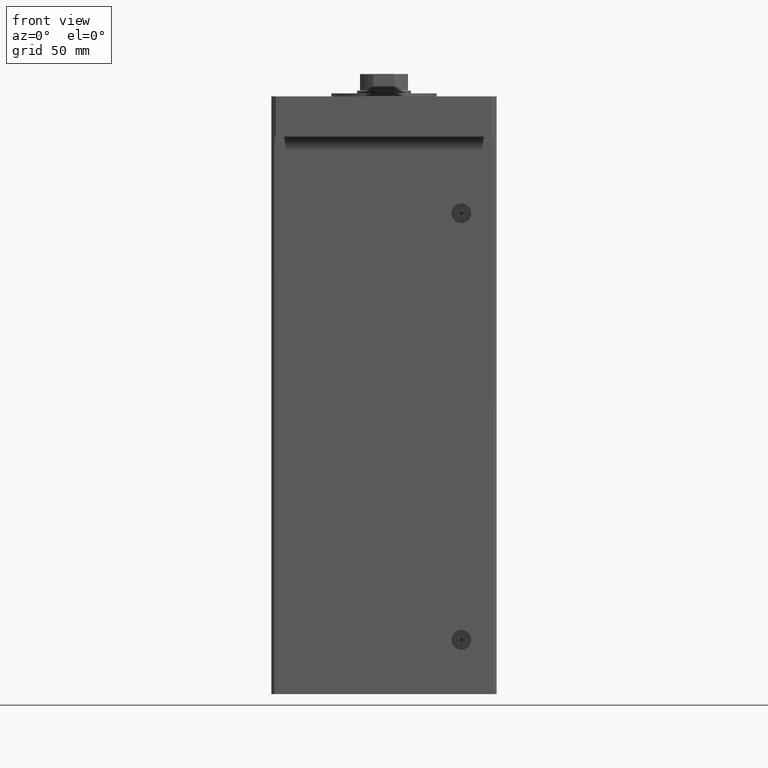
[diagram: clean part render]
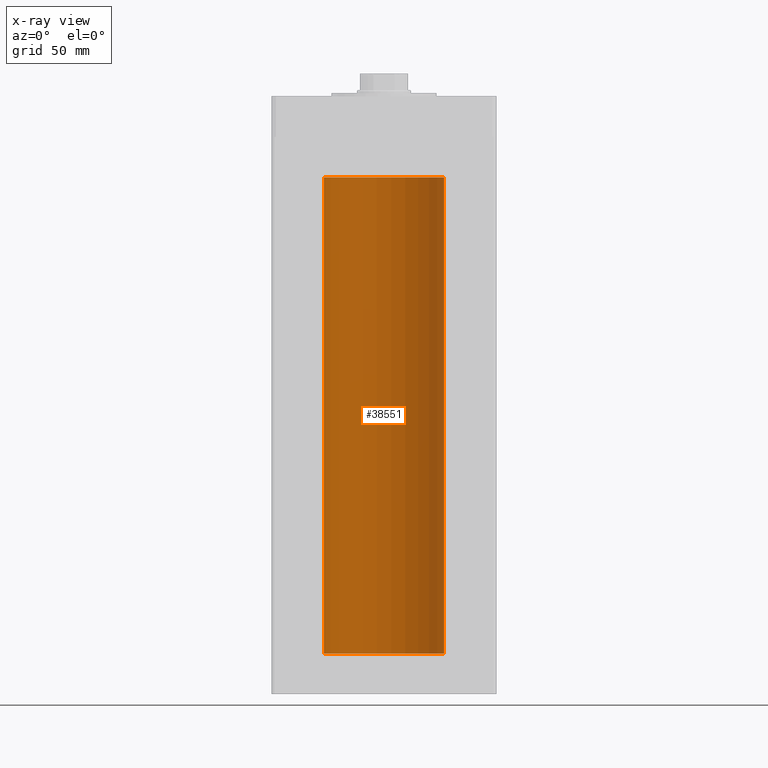
[diagram: x-ray — body ghosted, one internal face saturated and labeled with its STEP entity id]
A machine part, front view, then the same camera in x-ray: the body is ghosted and one INTERNAL B-rep face — a face not visible from any outside direction — is saturated and labeled: STEP entity #38551.
In plain terms, the highlighted cylindrical surface (partial cylindrical patch) has radius 40 mm, axis along (-0, -0, -1).
Its self-contained STEP definition (entity closure, byte-faithful):
#911 = CARTESIAN_POINT ( 'NONE',  ( 0.000000000000000000, 0.000000000000000000, 0.000000000000000000 ) ) ;
#1404 = VERTEX_POINT ( 'NONE', #30813 ) ;
#5284 = VERTEX_POINT ( 'NONE', #21671 ) ;
#6465 = DIRECTION ( 'NONE',  ( -1.000000000000000000, 0.000000000000000000, 0.000000000000000000 ) ) ;
#7747 = AXIS2_PLACEMENT_3D ( 'NONE', #43706, #14718, #10665 ) ;
#10665 = DIRECTION ( 'NONE',  ( 1.000000000000000000, 0.000000000000000000, 0.000000000000000000 ) ) ;
#11863 = FACE_OUTER_BOUND ( 'NONE', #52416, .T. ) ;
#12620 = EDGE_CURVE ( 'NONE', #1404, #24853, #48435, .T. ) ;
#14718 = DIRECTION ( 'NONE',  ( -0.000000000000000000, 0.000000000000000000, 1.000000000000000000 ) ) ;
#15716 = LINE ( 'NONE', #23560, #45620 ) ;
#16333 = ORIENTED_EDGE ( 'NONE', *, *, #38318, .F. ) ;
#16411 = EDGE_CURVE ( 'NONE', #5284, #34807, #41504, .T. ) ;
#17557 = CARTESIAN_POINT ( 'NONE',  ( -40.00000000000000000, 0.000000000000000000, 317.0000000000000000 ) ) ;
#19344 = CARTESIAN_POINT ( 'NONE',  ( -40.00000000000000000, 0.000000000000000000, 317.0000000000000000 ) ) ;
#21671 = CARTESIAN_POINT ( 'NONE',  ( 40.00000000000000000, 4.898587196589413026E-15, 317.0000000000000000 ) ) ;
#23400 = DIRECTION ( 'NONE',  ( -0.000000000000000000, -0.000000000000000000, -1.000000000000000000 ) ) ;
#23560 = CARTESIAN_POINT ( 'NONE',  ( 40.00000000000000000, 4.898587196589413026E-15, 317.0000000000000000 ) ) ;
#23666 = LINE ( 'NONE', #19344, #32379 ) ;
#24853 = VERTEX_POINT ( 'NONE', #39902 ) ;
#27303 = CARTESIAN_POINT ( 'NONE',  ( 0.000000000000000000, 0.000000000000000000, 317.0000000000000000 ) ) ;
#27592 = EDGE_CURVE ( 'NONE', #34807, #24853, #23666, .T. ) ;
#28366 = DIRECTION ( 'NONE',  ( -0.000000000000000000, -0.000000000000000000, -1.000000000000000000 ) ) ;
#30813 = CARTESIAN_POINT ( 'NONE',  ( 40.00000000000000000, 4.898587196589413026E-15, 0.000000000000000000 ) ) ;
#31427 = DIRECTION ( 'NONE',  ( -0.000000000000000000, -0.000000000000000000, -1.000000000000000000 ) ) ;
#32379 = VECTOR ( 'NONE', #23400, 1000.000000000000000 ) ;
#33490 = AXIS2_PLACEMENT_3D ( 'NONE', #27303, #28366, #6465 ) ;
#34807 = VERTEX_POINT ( 'NONE', #17557 ) ;
#38318 = EDGE_CURVE ( 'NONE', #5284, #1404, #15716, .T. ) ;
#38551 = ADVANCED_FACE ( 'NONE', ( #11863 ), #43841, .F. ) ;
#39655 = ORIENTED_EDGE ( 'NONE', *, *, #16411, .T. ) ;
#39902 = CARTESIAN_POINT ( 'NONE',  ( -40.00000000000000000, 0.000000000000000000, 0.000000000000000000 ) ) ;
#41504 = CIRCLE ( 'NONE', #7747, 40.00000000000000000 ) ;
#41539 = DIRECTION ( 'NONE',  ( -0.000000000000000000, 0.000000000000000000, 1.000000000000000000 ) ) ;
#43706 = CARTESIAN_POINT ( 'NONE',  ( 0.000000000000000000, 0.000000000000000000, 317.0000000000000000 ) ) ;
#43841 = CYLINDRICAL_SURFACE ( 'NONE', #33490, 40.00000000000000000 ) ;
#44106 = AXIS2_PLACEMENT_3D ( 'NONE', #911, #41539, #46684 ) ;
#45620 = VECTOR ( 'NONE', #31427, 1000.000000000000000 ) ;
#46684 = DIRECTION ( 'NONE',  ( 1.000000000000000000, 0.000000000000000000, 0.000000000000000000 ) ) ;
#48435 = CIRCLE ( 'NONE', #44106, 40.00000000000000000 ) ;
#48578 = ORIENTED_EDGE ( 'NONE', *, *, #12620, .F. ) ;
#51925 = ORIENTED_EDGE ( 'NONE', *, *, #27592, .T. ) ;
#52416 = EDGE_LOOP ( 'NONE', ( #16333, #39655, #51925, #48578 ) ) ;